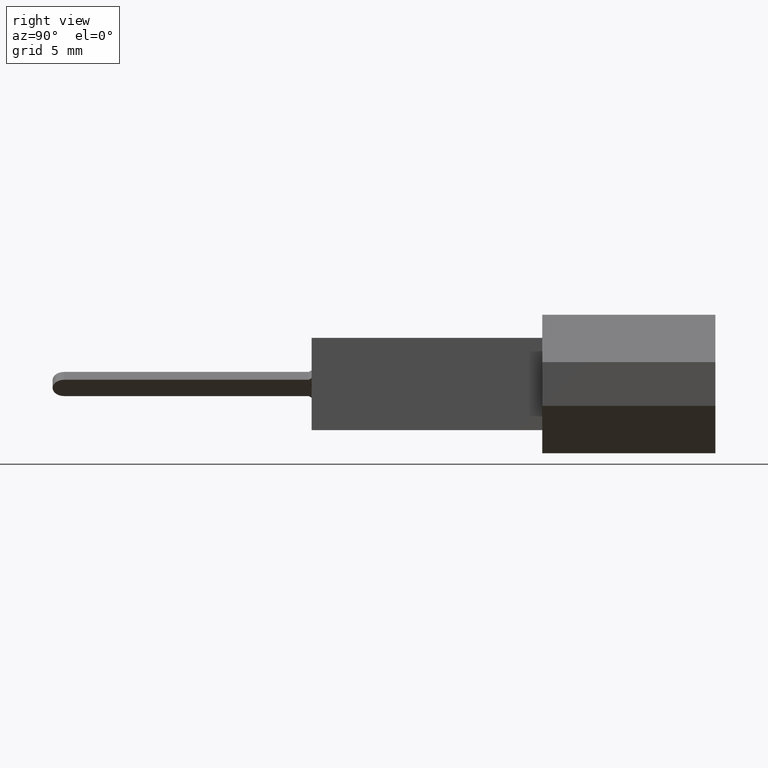
[diagram: clean part render]
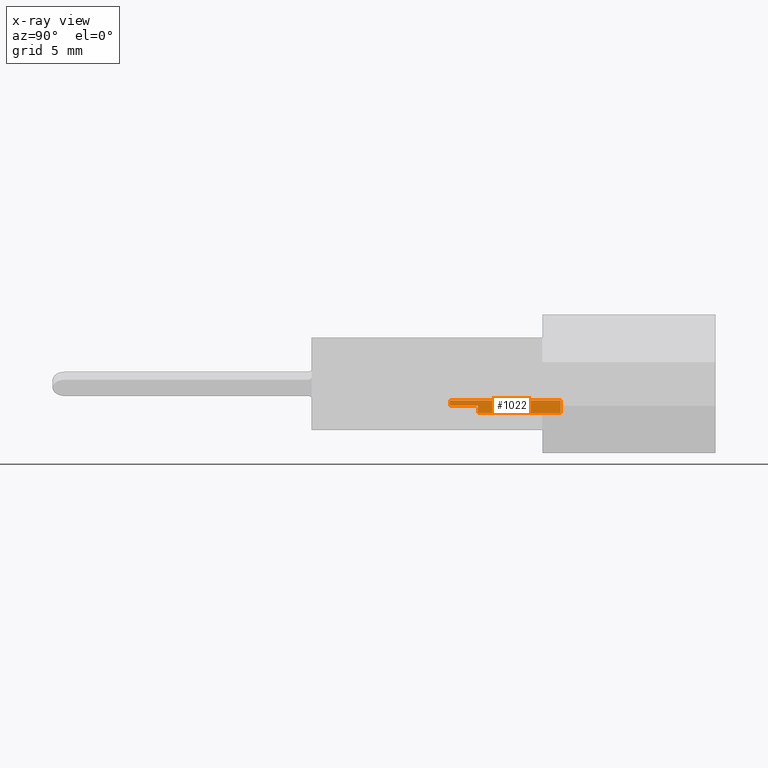
[diagram: x-ray — body ghosted, one internal face saturated and labeled with its STEP entity id]
A machine part, right view, then the same camera in x-ray: the body is ghosted and one INTERNAL B-rep face — a face not visible from any outside direction — is saturated and labeled: STEP entity #1022.
In plain terms, the highlighted planar face has unit normal (-0.7071, 0, -0.7071).
Its self-contained STEP definition (entity closure, byte-faithful):
#29 = ORIENTED_EDGE ( 'NONE', *, *, #861, .F. ) ;
#162 = CARTESIAN_POINT ( 'NONE',  ( 7.565589755157232000, -3.556000000000000000, -0.8980256121069142300 ) ) ;
#188 = CARTESIAN_POINT ( 'NONE',  ( 7.565589755157232000, 1.015999999999999600, -0.8980256121069142300 ) ) ;
#243 = VECTOR ( 'NONE', #1168, 999.9999999999998900 ) ;
#332 = LINE ( 'NONE', #162, #2867 ) ;
#377 = B_SPLINE_CURVE_WITH_KNOTS ( 'NONE', 3,
 ( #3098, #5045, #5059, #3024 ),
 .UNSPECIFIED., .F., .F.,
 ( 4, 4 ),
 ( 0.0006940124607052513300, 0.0007289083300417319100 ),
 .UNSPECIFIED. ) ;
#623 = VERTEX_POINT ( 'NONE', #4150 ) ;
#677 = EDGE_CURVE ( 'NONE', #1005, #3570, #377, .T. ) ;
#831 = ORIENTED_EDGE ( 'NONE', *, *, #2772, .F. ) ;
#861 = EDGE_CURVE ( 'NONE', #3570, #623, #3997, .T. ) ;
#898 = CARTESIAN_POINT ( 'NONE',  ( 7.565589755157232000, -12.69999999999999900, -0.8980256121069142300 ) ) ;
#900 = CARTESIAN_POINT ( 'NONE',  ( 7.852957951031445600, -12.69999999999999900, -1.185393807981128100 ) ) ;
#964 = DIRECTION ( 'NONE',  ( -0.0000000000000000000, 1.000000000000000000, -0.0000000000000000000 ) ) ;
#1005 = VERTEX_POINT ( 'NONE', #1095 ) ;
#1022 = ADVANCED_FACE ( 'NONE', ( #1631 ), #3108, .F. ) ;
#1095 = CARTESIAN_POINT ( 'NONE',  ( 7.852957951031445600, -5.099168844320192100, -1.185393807981128400 ) ) ;
#1163 = ORIENTED_EDGE ( 'NONE', *, *, #677, .F. ) ;
#1168 = DIRECTION ( 'NONE',  ( -0.7071067811865469100, -0.0000000000000000000, 0.7071067811865481300 ) ) ;
#1521 = ORIENTED_EDGE ( 'NONE', *, *, #4660, .T. ) ;
#1523 = AXIS2_PLACEMENT_3D ( 'NONE', #2142, #3614, #6213 ) ;
#1631 = FACE_OUTER_BOUND ( 'NONE', #3753, .T. ) ;
#1775 = VECTOR ( 'NONE', #3166, 1000.000000000000000 ) ;
#2065 = VECTOR ( 'NONE', #2936, 1000.000000000000000 ) ;
#2070 = CARTESIAN_POINT ( 'NONE',  ( 8.279919841461842000, -3.556000000000000000, -1.612355698411524600 ) ) ;
#2142 = CARTESIAN_POINT ( 'NONE',  ( 7.565589755157232000, -12.69999999999999900, -0.8980256121069142300 ) ) ;
#2151 = LINE ( 'NONE', #4589, #6462 ) ;
#2180 = VERTEX_POINT ( 'NONE', #2388 ) ;
#2388 = CARTESIAN_POINT ( 'NONE',  ( 7.852957951031445600, -3.556000000000000000, -1.185393807981128100 ) ) ;
#2444 = ORIENTED_EDGE ( 'NONE', *, *, #3964, .F. ) ;
#2479 = VERTEX_POINT ( 'NONE', #2070 ) ;
#2772 = EDGE_CURVE ( 'NONE', #2479, #2180, #332, .T. ) ;
#2828 = VERTEX_POINT ( 'NONE', #4603 ) ;
#2867 = VECTOR ( 'NONE', #3119, 999.9999999999998900 ) ;
#2936 = DIRECTION ( 'NONE',  ( 0.0000000000000000000, 1.000000000000000000, 0.0000000000000000000 ) ) ;
#3024 = CARTESIAN_POINT ( 'NONE',  ( 7.832296592872978600, -5.080000000000001000, -1.164732449822661700 ) ) ;
#3090 = DIRECTION ( 'NONE',  ( 0.0000000000000000000, 1.000000000000000000, 0.0000000000000000000 ) ) ;
#3098 = CARTESIAN_POINT ( 'NONE',  ( 7.852957951031445600, -5.099168844320192100, -1.185393807981128400 ) ) ;
#3108 = PLANE ( 'NONE',  #1523 ) ;
#3119 = DIRECTION ( 'NONE',  ( -0.7071067811865469100, -0.0000000000000000000, 0.7071067811865481300 ) ) ;
#3166 = DIRECTION ( 'NONE',  ( -0.7071067811865466800, -8.713498840270181700E-017, 0.7071067811865483500 ) ) ;
#3354 = ORIENTED_EDGE ( 'NONE', *, *, #3516, .T. ) ;
#3407 = LINE ( 'NONE', #900, #2065 ) ;
#3516 = EDGE_CURVE ( 'NONE', #1005, #2180, #3407, .T. ) ;
#3543 = EDGE_CURVE ( 'NONE', #2479, #2828, #2151, .T. ) ;
#3570 = VERTEX_POINT ( 'NONE', #4138 ) ;
#3614 = DIRECTION ( 'NONE',  ( -0.7071067811865483500, 0.0000000000000000000, -0.7071067811865466800 ) ) ;
#3753 = EDGE_LOOP ( 'NONE', ( #1521, #2444, #29, #1163, #3354, #831, #4723 ) ) ;
#3964 = EDGE_CURVE ( 'NONE', #623, #5276, #4045, .T. ) ;
#3997 = LINE ( 'NONE', #6079, #1775 ) ;
#4045 = LINE ( 'NONE', #898, #4286 ) ;
#4138 = CARTESIAN_POINT ( 'NONE',  ( 7.832296592872978600, -5.080000000000001000, -1.164732449822661700 ) ) ;
#4150 = CARTESIAN_POINT ( 'NONE',  ( 7.565589755157232000, -5.080000000000001000, -0.8980256121069150100 ) ) ;
#4286 = VECTOR ( 'NONE', #3090, 1000.000000000000000 ) ;
#4589 = CARTESIAN_POINT ( 'NONE',  ( 8.279919841461842000, -3.556000000000000000, -1.612355698411524600 ) ) ;
#4603 = CARTESIAN_POINT ( 'NONE',  ( 8.279919841461842000, 1.015999999999999600, -1.612355698411524600 ) ) ;
#4660 = EDGE_CURVE ( 'NONE', #2828, #5276, #5792, .T. ) ;
#4716 = CARTESIAN_POINT ( 'NONE',  ( 7.565589755157232000, 1.015999999999999600, -0.8980256121069142300 ) ) ;
#4723 = ORIENTED_EDGE ( 'NONE', *, *, #3543, .T. ) ;
#5045 = CARTESIAN_POINT ( 'NONE',  ( 7.846089136298738600, -5.092728139206953700, -1.178524993248422500 ) ) ;
#5059 = CARTESIAN_POINT ( 'NONE',  ( 7.839202417465272400, -5.086337406446096700, -1.171638274414955600 ) ) ;
#5276 = VERTEX_POINT ( 'NONE', #4716 ) ;
#5792 = LINE ( 'NONE', #188, #243 ) ;
#6079 = CARTESIAN_POINT ( 'NONE',  ( 7.565589755157231100, -5.080000000000001000, -0.8980256121069137800 ) ) ;
#6213 = DIRECTION ( 'NONE',  ( -0.7071067811865466800, 0.0000000000000000000, 0.7071067811865483500 ) ) ;
#6462 = VECTOR ( 'NONE', #964, 1000.000000000000000 ) ;